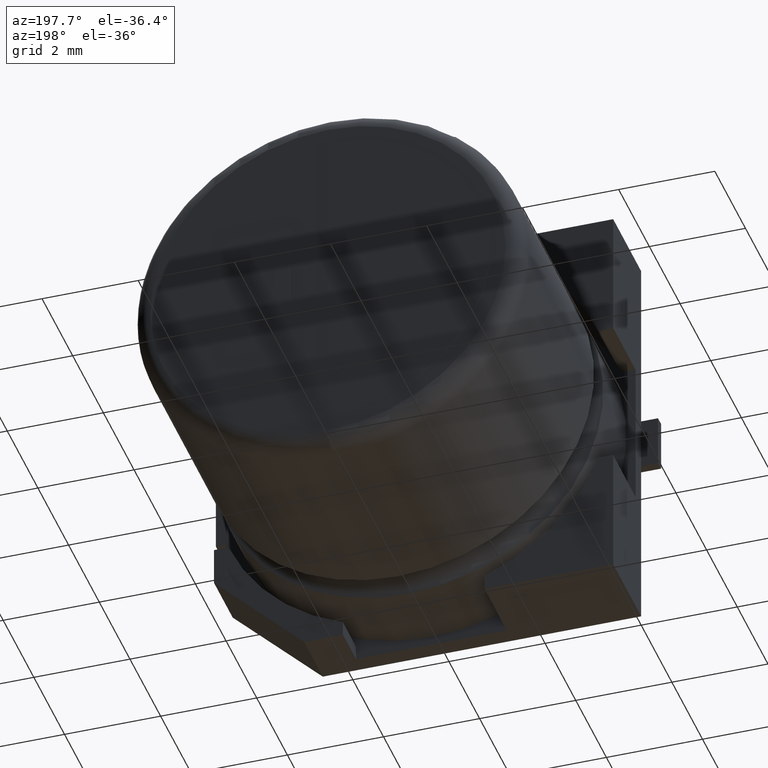
[diagram: clean part render]
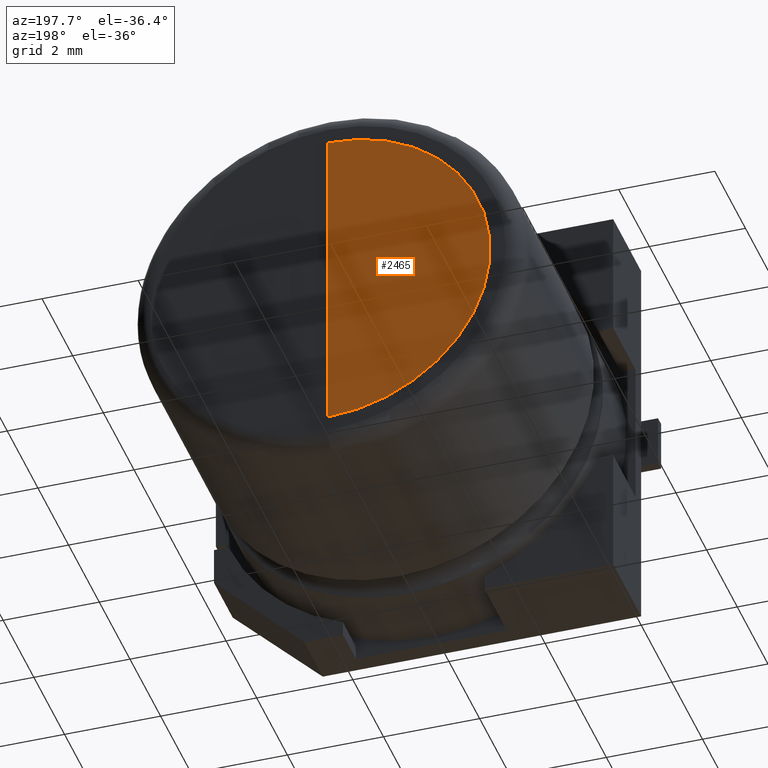
[diagram: same view with one face highlighted and labeled with its STEP entity id]
A machine part, auxiliary view. The second image highlights one B-rep face of the part: STEP entity #2465.
In plain terms, the highlighted planar face has unit normal (0, 1, 0).
Its self-contained STEP definition (entity closure, byte-faithful):
#57 = DIRECTION ( 'NONE',  ( 0.0000000000000000000, 0.0000000000000000000, 1.000000000000000000 ) ) ;
#290 = CARTESIAN_POINT ( 'NONE',  ( 4.250000000000000000, 7.104999999999999500, -4.250000000000000000 ) ) ;
#314 = VERTEX_POINT ( 'NONE', #3140 ) ;
#404 = LINE ( 'NONE', #290, #2008 ) ;
#645 = CARTESIAN_POINT ( 'NONE',  ( 4.250000000000000000, 7.104999999999999500, -7.624967499999999500 ) ) ;
#793 = DIRECTION ( 'NONE',  ( 0.0000000000000000000, 1.000000000000000000, 0.0000000000000000000 ) ) ;
#794 = CIRCLE ( 'NONE', #3047, 3.374967499999999500 ) ;
#845 = FACE_OUTER_BOUND ( 'NONE', #2372, .T. ) ;
#919 = EDGE_CURVE ( 'NONE', #314, #1146, #404, .T. ) ;
#1022 = PLANE ( 'NONE',  #3410 ) ;
#1146 = VERTEX_POINT ( 'NONE', #645 ) ;
#2008 = VECTOR ( 'NONE', #2580, 1000.000000000000000 ) ;
#2372 = EDGE_LOOP ( 'NONE', ( #2610, #3132 ) ) ;
#2465 = ADVANCED_FACE ( 'NONE', ( #845 ), #1022, .T. ) ;
#2580 = DIRECTION ( 'NONE',  ( -0.0000000000000000000, -0.0000000000000000000, -1.000000000000000000 ) ) ;
#2610 = ORIENTED_EDGE ( 'NONE', *, *, #919, .T. ) ;
#2666 = CARTESIAN_POINT ( 'NONE',  ( 4.250000000000000000, 7.104999999999999500, -4.250000000000000000 ) ) ;
#2857 = CARTESIAN_POINT ( 'NONE',  ( 4.250000000000000000, 7.104999999999999500, -4.250000000000000000 ) ) ;
#2921 = DIRECTION ( 'NONE',  ( 0.0000000000000000000, 1.000000000000000000, 0.0000000000000000000 ) ) ;
#3047 = AXIS2_PLACEMENT_3D ( 'NONE', #2666, #2921, #57 ) ;
#3110 = EDGE_CURVE ( 'NONE', #1146, #314, #794, .T. ) ;
#3132 = ORIENTED_EDGE ( 'NONE', *, *, #3110, .T. ) ;
#3140 = CARTESIAN_POINT ( 'NONE',  ( 4.250000000000000000, 7.104999999999999500, -0.8750325000000009900 ) ) ;
#3401 = DIRECTION ( 'NONE',  ( 0.0000000000000000000, -0.0000000000000000000, 1.000000000000000000 ) ) ;
#3410 = AXIS2_PLACEMENT_3D ( 'NONE', #2857, #793, #3401 ) ;